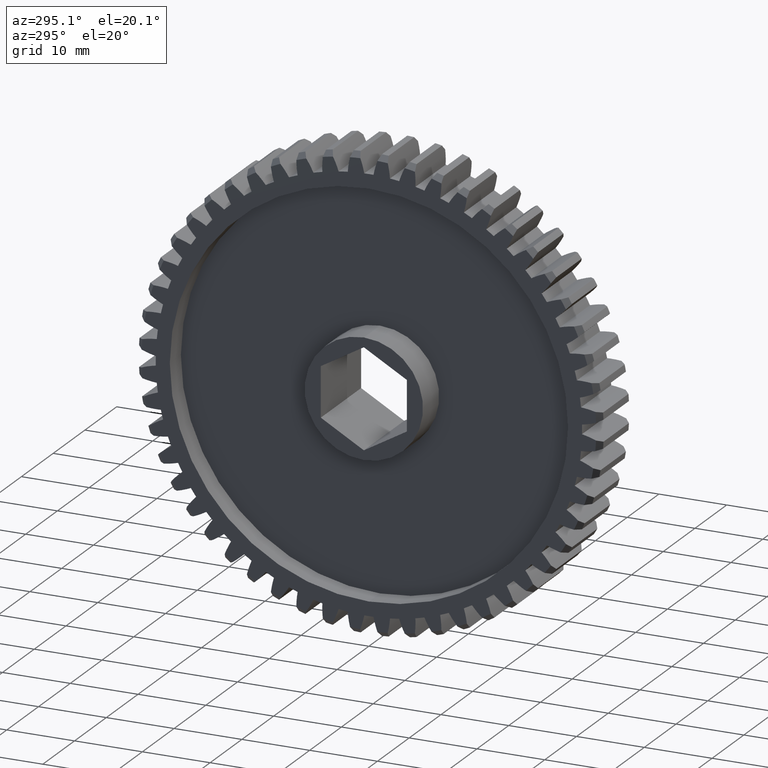
[diagram: clean part render]
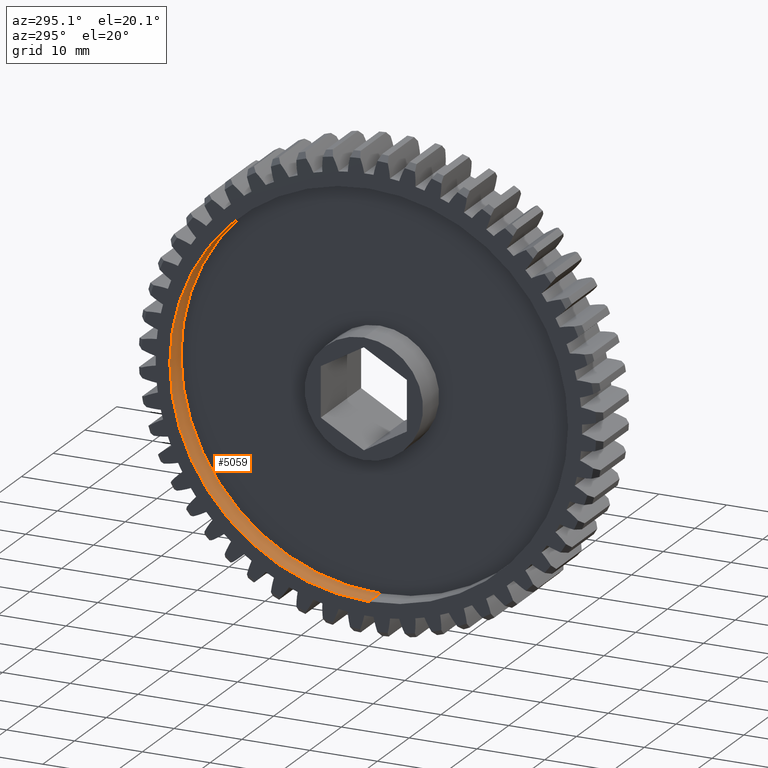
[diagram: same view with one face highlighted and labeled with its STEP entity id]
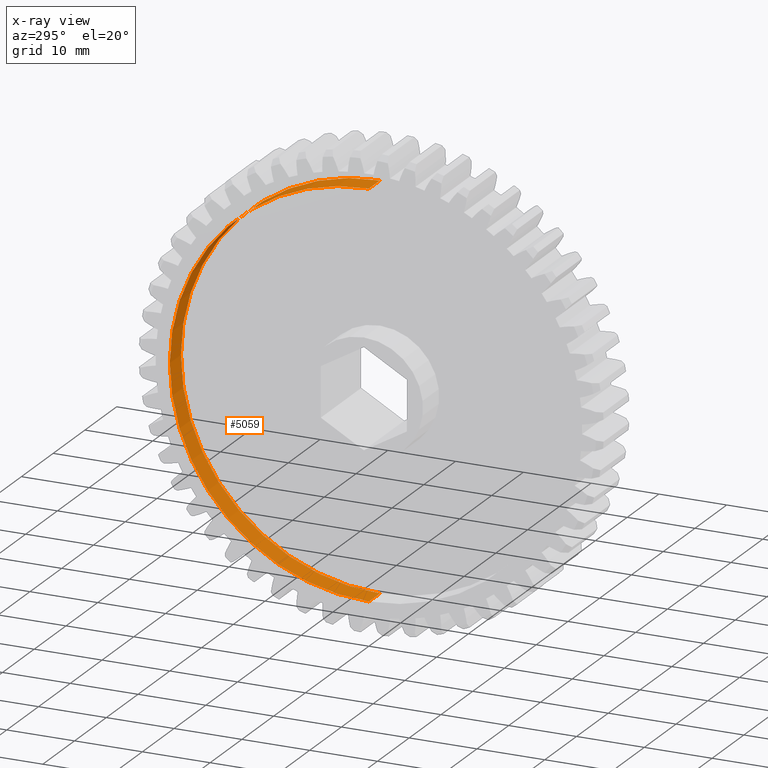
[diagram: x-ray of the same camera — body ghosted, the highlighted face saturated]
A machine part, auxiliary view. The second image highlights one B-rep face of the part: STEP entity #5059.
The next image is the same camera in x-ray: the body ghosted, the highlighted face saturated — about 0% of this face is hidden behind the body in this view.
In plain terms, the highlighted cylindrical surface (partial cylindrical patch) has radius 29.3687 mm, axis along (-1, -0, -0).
Its self-contained STEP definition (entity closure, byte-faithful):
#43 = LINE ( 'NONE', #3669, #11090 ) ;
#276 = EDGE_CURVE ( 'NONE', #6851, #9487, #5970, .T. ) ;
#543 = AXIS2_PLACEMENT_3D ( 'NONE', #11815, #7760, #8751 ) ;
#597 = EDGE_CURVE ( 'NONE', #5025, #6861, #43, .T. ) ;
#1092 = DIRECTION ( 'NONE',  ( -1.000000000000000000, 0.0000000000000000000, 0.0000000000000000000 ) ) ;
#1600 = CARTESIAN_POINT ( 'NONE',  ( 0.1375000000000000111, 1.415997861514127123E-16, -1.156250000000000000 ) ) ;
#2090 = ORIENTED_EDGE ( 'NONE', *, *, #276, .F. ) ;
#2390 = VECTOR ( 'NONE', #6869, 39.37007874015748143 ) ;
#2775 = CARTESIAN_POINT ( 'NONE',  ( 0.0000000000000000000, 1.415997861514127123E-16, -1.156250000000000000 ) ) ;
#3219 = CARTESIAN_POINT ( 'NONE',  ( 0.1375000000000000111, 1.415997861514127123E-16, -1.156250000000000000 ) ) ;
#3447 = ORIENTED_EDGE ( 'NONE', *, *, #4108, .T. ) ;
#3517 = DIRECTION ( 'NONE',  ( 0.0000000000000000000, 0.0000000000000000000, 1.000000000000000000 ) ) ;
#3669 = CARTESIAN_POINT ( 'NONE',  ( 0.1375000000000000111, 0.0000000000000000000, 1.156250000000000000 ) ) ;
#3901 = DIRECTION ( 'NONE',  ( 0.0000000000000000000, 0.0000000000000000000, 1.000000000000000000 ) ) ;
#4108 = EDGE_CURVE ( 'NONE', #6861, #9487, #9081, .T. ) ;
#4566 = DIRECTION ( 'NONE',  ( -1.000000000000000000, -0.0000000000000000000, -0.0000000000000000000 ) ) ;
#5025 = VERTEX_POINT ( 'NONE', #11386 ) ;
#5059 = ADVANCED_FACE ( 'NONE', ( #6154 ), #7979, .F. ) ;
#5174 = CARTESIAN_POINT ( 'NONE',  ( 0.0000000000000000000, 0.0000000000000000000, 0.0000000000000000000 ) ) ;
#5861 = ORIENTED_EDGE ( 'NONE', *, *, #7371, .F. ) ;
#5970 = LINE ( 'NONE', #3219, #2390 ) ;
#6154 = FACE_OUTER_BOUND ( 'NONE', #9589, .T. ) ;
#6528 = CIRCLE ( 'NONE', #10307, 1.156250000000000000 ) ;
#6851 = VERTEX_POINT ( 'NONE', #1600 ) ;
#6861 = VERTEX_POINT ( 'NONE', #9019 ) ;
#6869 = DIRECTION ( 'NONE',  ( -1.000000000000000000, -0.0000000000000000000, -0.0000000000000000000 ) ) ;
#7371 = EDGE_CURVE ( 'NONE', #5025, #6851, #6528, .T. ) ;
#7546 = ORIENTED_EDGE ( 'NONE', *, *, #597, .T. ) ;
#7595 = CARTESIAN_POINT ( 'NONE',  ( 0.1375000000000000111, 0.0000000000000000000, 0.0000000000000000000 ) ) ;
#7760 = DIRECTION ( 'NONE',  ( -1.000000000000000000, -0.0000000000000000000, -0.0000000000000000000 ) ) ;
#7979 = CYLINDRICAL_SURFACE ( 'NONE', #543, 1.156250000000000000 ) ;
#8751 = DIRECTION ( 'NONE',  ( 0.0000000000000000000, 0.0000000000000000000, 1.000000000000000000 ) ) ;
#9019 = CARTESIAN_POINT ( 'NONE',  ( 0.0000000000000000000, 0.0000000000000000000, 1.156250000000000000 ) ) ;
#9081 = CIRCLE ( 'NONE', #9432, 1.156250000000000000 ) ;
#9432 = AXIS2_PLACEMENT_3D ( 'NONE', #5174, #11650, #3901 ) ;
#9487 = VERTEX_POINT ( 'NONE', #2775 ) ;
#9589 = EDGE_LOOP ( 'NONE', ( #2090, #5861, #7546, #3447 ) ) ;
#10307 = AXIS2_PLACEMENT_3D ( 'NONE', #7595, #1092, #3517 ) ;
#11090 = VECTOR ( 'NONE', #4566, 39.37007874015748143 ) ;
#11386 = CARTESIAN_POINT ( 'NONE',  ( 0.1375000000000000111, 0.0000000000000000000, 1.156250000000000000 ) ) ;
#11650 = DIRECTION ( 'NONE',  ( -1.000000000000000000, 0.0000000000000000000, 0.0000000000000000000 ) ) ;
#11815 = CARTESIAN_POINT ( 'NONE',  ( 0.1375000000000000111, 0.0000000000000000000, 0.0000000000000000000 ) ) ;